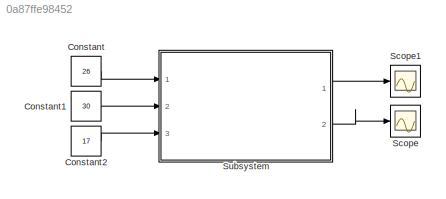
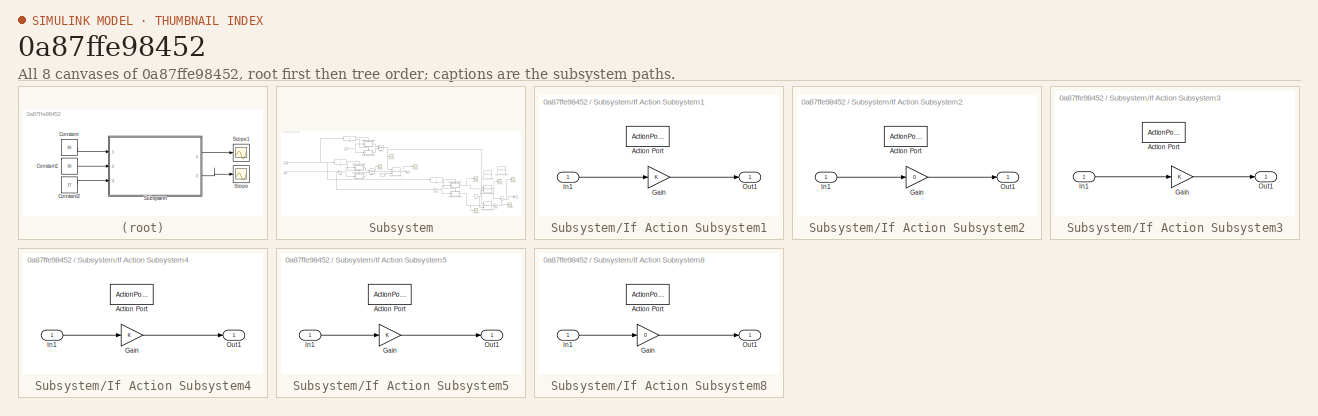
[diagram: thumbnail index - all 8 canvases of the model, root first then tree order]
MODEL slx_0a87ffe98452
KIND model
CONFIG AbsTol = auto
CONFIG EnableMultiTasking = off
CONFIG FixedStep = auto
CONFIG MaxStep = auto
CONFIG MinStep = auto
CONFIG RelTol = 1e-3
CONFIG SampleTimeConstraint = Unconstrained
CONFIG Solver = VariableStepAuto
CONFIG SolverName = VariableStepAuto
CONFIG StartTime = 0.0
CONFIG StopTime = 10.0
BLOCK [Constant] Constant
  Value = 26
BLOCK [Constant] Constant1
  Value = 30
BLOCK [Constant] Constant2
  Value = 17
BLOCK [Scope] Scope
  Floating = off
  NumInputPorts = 1
  Ports = [1]
  ScopeSpecificationString = Simulink.scopes.TimeScopeBlockCfg('CurrentConfiguration', extmgr.ConfigurationSet(extmgr.Configuration('Core','General UI',true),extmgr.Configuration('Core','Source UI',true),extmgr.Configuration('Sources','WiredSimulink',true,'DataLoggingVariableName','ScopeData1'),extmgr.Configuration('Visuals','Time Domain',true,'SerializedDisplays',{struct('MinYLimReal','7.00000','MaxYLimReal','27.00000','YLab...<+1372ch>
BLOCK [Scope] Scope1
  Floating = off
  NumInputPorts = 1
  Ports = [1]
  ScopeSpecificationString = Simulink.scopes.TimeScopeBlockCfg('CurrentConfiguration', extmgr.ConfigurationSet(extmgr.Configuration('Core','General UI',true),extmgr.Configuration('Core','Source UI',true),extmgr.Configuration('Sources','WiredSimulink',true,'DataLoggingVariableName','ScopeData2'),extmgr.Configuration('Visuals','Time Domain',true,'SerializedDisplays',{struct('MinYLimReal','7.00000','MaxYLimReal','27.00000','YLab...<+1372ch>
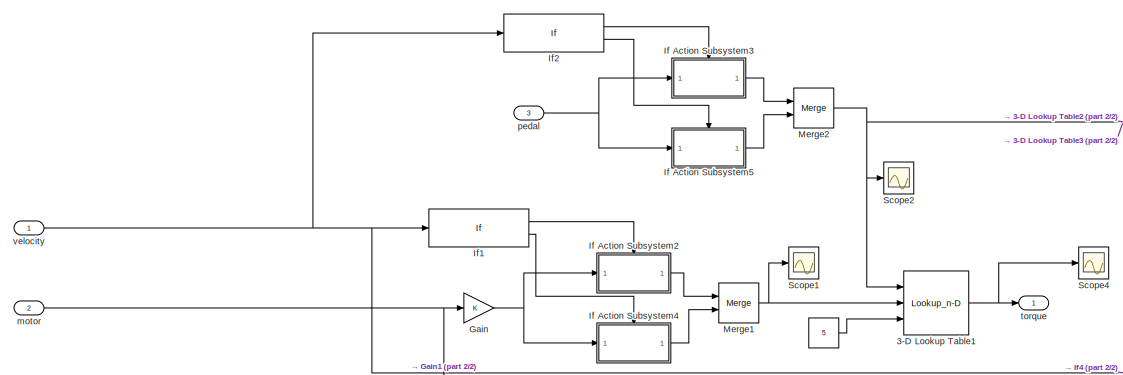
[diagram: Subsystem - part 1/2, top left region]
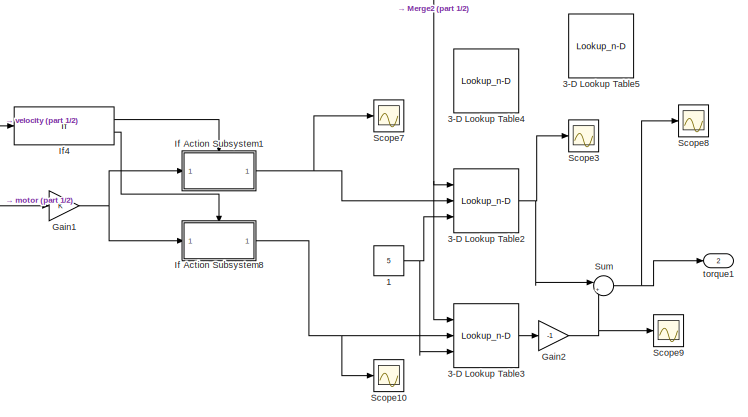
[diagram: Subsystem - part 2/2, bottom right region]
BLOCK [SubSystem] Subsystem
  Ports = [3, 2]
  RequestExecContextInheritance = off
BLOCK [Constant] Subsystem/ 
  Value = 5
BLOCK [Constant] Subsystem/ 1
  Value = 5
BLOCK [Lookup_n-D] Subsystem/3-D Lookup Table1
  BreakpointsForDimension1 = [0,5,10,15,20]
  BreakpointsForDimension2 = [0,10,20,30,40]
  BreakpointsForDimension3 = [5, 7]
  InternalRulePriority = Speed
  NumberOfTableDimensions = 3
  Ports = [3, 1]
  RndMeth = Simplest
  Table = reshape([0,5,10,15,20,0,10,15,20,25,0,10,20,25,30,0,10,20,30,35,0,10,20,30,40,0,5,10,15,20,0,10,15,20,25,0,10,20,25,30,0,10,20,30,35,0,10,20,30,40],5,5,2)
BLOCK [Lookup_n-D] Subsystem/3-D Lookup Table2
  BreakpointsForDimension1 = [0,5,10,15,20]
  BreakpointsForDimension2 = [0,10,20,30,40]
  BreakpointsForDimension3 = [5, 7]
  InternalRulePriority = Speed
  NumberOfTableDimensions = 3
  Ports = [3, 1]
  RndMeth = Simplest
  Table = reshape([0,5,10,15,20,0,10,15,20,25,0,10,20,25,30,0,10,20,30,35,0,10,20,30,40,0,5,10,15,20,0,10,15,20,25,0,10,20,25,30,0,10,20,30,35,0,10,20,30,40],5,5,2)
BLOCK [Lookup_n-D] Subsystem/3-D Lookup Table3
  BreakpointsForDimension1 = [0,5,10,15,20]
  BreakpointsForDimension2 = [0,10,20,30,40]
  BreakpointsForDimension3 = [5, 7]
  InternalRulePriority = Speed
  NumberOfTableDimensions = 3
  Ports = [3, 1]
  RndMeth = Simplest
  Table = reshape([0,0,0,0,0,0,10,15,20,25,0,10,20,25,30,0,10,20,30,35,0,10,20,30,40,0,5,10,15,20,0,10,15,20,25,0,10,20,25,30,0,10,20,30,35,0,10,20,30,40],5,5,2)
BLOCK [Lookup_n-D] Subsystem/3-D Lookup Table4
  BreakpointsForDimension1 = [0,5,10,15,20]
  BreakpointsForDimension2 = [-40,-30,-20,-10,0,10,20,30,40]
  BreakpointsForDimension3 = [5, 7]
  InternalRulePriority = Speed
  NumberOfTableDimensions = 3
  Ports = [3, 1]
  RndMeth = Simplest
  Table = reshape([0,-10,-20,-30,-40,0,-10,-20,-30,-35,0,-10,-20,-25,-30,0,-10,-15,-20,-25,0,5,10,15,20,0,10,15,20,25,0,10,20,25,30,0,10,20,30,35,0,10,20,30,40,0,-10,-20,-30,-40,0,-10,-20,-30,-35,0,-10,-20,-25,-30,0,-10,-15,-20,-25,0,5,10,15,20,0,10,15,20,25,0,10,20,25,30,0,10,20,30,35,0,10,20,30,40],5,9,2)
BLOCK [Lookup_n-D] Subsystem/3-D Lookup Table5
  BreakpointsForDimension1 = [0,5,10,15,20]
  BreakpointsForDimension2 = [-40,-30,-20,-10,0]
  BreakpointsForDimension3 = [5, 7]
  InternalRulePriority = Speed
  NumberOfTableDimensions = 3
  Ports = [3, 1]
  RndMeth = Simplest
  Table = reshape([\n0,-10,-20,-30,-40,0,-10,-20,-30,-35,0,-10,-20,-25,-30,0,-10,-15,-20,-25,0,5,10,15,20,0,-10,-20,-30,-40,0,-10,-20,-30,-35,0,-10,-20,-25,-30,0,-10,-15,-20,-25,0,5,10,15,20],5,5,2)
BLOCK [Gain] Subsystem/Gain
  OutDataTypeStr = Inherit: Inherit via internal rule
  ParamDataTypeStr = Inherit: Inherit via internal rule
  SaturateOnIntegerOverflow = off
BLOCK [Gain] Subsystem/Gain1
  OutDataTypeStr = Inherit: Inherit via internal rule
  ParamDataTypeStr = Inherit: Inherit via internal rule
  SaturateOnIntegerOverflow = off
BLOCK [Gain] Subsystem/Gain2
  Gain = -1
  OutDataTypeStr = Inherit: Inherit via internal rule
  ParamDataTypeStr = Inherit: Inherit via internal rule
  SaturateOnIntegerOverflow = off
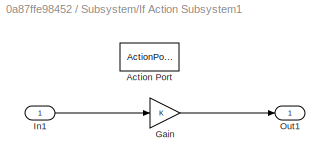
BLOCK [SubSystem] Subsystem/If Action Subsystem1
  Ports = [1, 1, 0, 0, 0, 0, 0, 1]
  RequestExecContextInheritance = off
  TreatAsAtomicUnit = on
BLOCK [ActionPort] Subsystem/If Action Subsystem1/Action Port
  ActionPortLabel = if(u1 < 25.25)
BLOCK [Gain] Subsystem/If Action Subsystem1/Gain
  OutDataTypeStr = Inherit: Inherit via internal rule
  ParamDataTypeStr = Inherit: Inherit via internal rule
  SaturateOnIntegerOverflow = off
BLOCK [Inport] Subsystem/If Action Subsystem1/In1
  IconDisplay = Port number
BLOCK [Outport] Subsystem/If Action Subsystem1/Out1
  IconDisplay = Port number
BLOCK [SubSystem] Subsystem/If Action Subsystem2
  Ports = [1, 1, 0, 0, 0, 0, 0, 1]
  RequestExecContextInheritance = off
  TreatAsAtomicUnit = on
BLOCK [ActionPort] Subsystem/If Action Subsystem2/Action Port
  ActionPortLabel = if(u1 > 25)
BLOCK [Gain] Subsystem/If Action Subsystem2/Gain
  Gain = 0
  OutDataTypeStr = Inherit: Inherit via internal rule
  ParamDataTypeStr = Inherit: Inherit via internal rule
  SaturateOnIntegerOverflow = off
BLOCK [Inport] Subsystem/If Action Subsystem2/In1
  IconDisplay = Port number
BLOCK [Outport] Subsystem/If Action Subsystem2/Out1
  IconDisplay = Port number
BLOCK [SubSystem] Subsystem/If Action Subsystem3
  Ports = [1, 1, 0, 0, 0, 0, 0, 1]
  RequestExecContextInheritance = off
  TreatAsAtomicUnit = on
BLOCK [ActionPort] Subsystem/If Action Subsystem3/Action Port
  ActionPortLabel = if(u1 < 25.5)
BLOCK [Gain] Subsystem/If Action Subsystem3/Gain
  OutDataTypeStr = Inherit: Inherit via internal rule
  ParamDataTypeStr = Inherit: Inherit via internal rule
  SaturateOnIntegerOverflow = off
BLOCK [Inport] Subsystem/If Action Subsystem3/In1
  IconDisplay = Port number
BLOCK [Outport] Subsystem/If Action Subsystem3/Out1
  IconDisplay = Port number
BLOCK [SubSystem] Subsystem/If Action Subsystem4
  Ports = [1, 1, 0, 0, 0, 0, 0, 1]
  RequestExecContextInheritance = off
  TreatAsAtomicUnit = on
BLOCK [ActionPort] Subsystem/If Action Subsystem4/Action Port
  ActionPortLabel = else
BLOCK [Gain] Subsystem/If Action Subsystem4/Gain
  OutDataTypeStr = Inherit: Inherit via internal rule
  ParamDataTypeStr = Inherit: Inherit via internal rule
  SaturateOnIntegerOverflow = off
BLOCK [Inport] Subsystem/If Action Subsystem4/In1
  IconDisplay = Port number
BLOCK [Outport] Subsystem/If Action Subsystem4/Out1
  IconDisplay = Port number
BLOCK [SubSystem] Subsystem/If Action Subsystem5
  Ports = [1, 1, 0, 0, 0, 0, 0, 1]
  RequestExecContextInheritance = off
  TreatAsAtomicUnit = on
BLOCK [ActionPort] Subsystem/If Action Subsystem5/Action Port
  ActionPortLabel = else
BLOCK [Gain] Subsystem/If Action Subsystem5/Gain
  OutDataTypeStr = Inherit: Inherit via internal rule
  ParamDataTypeStr = Inherit: Inherit via internal rule
  SaturateOnIntegerOverflow = off
BLOCK [Inport] Subsystem/If Action Subsystem5/In1
  IconDisplay = Port number
BLOCK [Outport] Subsystem/If Action Subsystem5/Out1
  IconDisplay = Port number
BLOCK [SubSystem] Subsystem/If Action Subsystem8
  Ports = [1, 1, 0, 0, 0, 0, 0, 1]
  RequestExecContextInheritance = off
  TreatAsAtomicUnit = on
BLOCK [ActionPort] Subsystem/If Action Subsystem8/Action Port
  ActionPortLabel = else
BLOCK [Gain] Subsystem/If Action Subsystem8/Gain
  Gain = 0
  OutDataTypeStr = Inherit: Inherit via internal rule
  ParamDataTypeStr = Inherit: Inherit via internal rule
  SaturateOnIntegerOverflow = off
BLOCK [Inport] Subsystem/If Action Subsystem8/In1
  IconDisplay = Port number
BLOCK [Outport] Subsystem/If Action Subsystem8/Out1
  IconDisplay = Port number
BLOCK [If] Subsystem/If1
  IfExpression = u1 > 25
  Ports = [1, 2]
BLOCK [If] Subsystem/If2
  IfExpression = u1 < 25.5
  Ports = [1, 2]
BLOCK [If] Subsystem/If4
  IfExpression = u1 < 25.25
  Ports = [1, 2]
BLOCK [Merge] Subsystem/Merge1
  Ports = [2, 1]
BLOCK [Merge] Subsystem/Merge2
  Ports = [2, 1]
BLOCK [Scope] Subsystem/Scope1
  Floating = off
  NumInputPorts = 1
  Ports = [1]
  ScopeSpecificationString = Simulink.scopes.TimeScopeBlockCfg('CurrentConfiguration', extmgr.ConfigurationSet(extmgr.Configuration('Core','General UI',true),extmgr.Configuration('Core','Source UI',true),extmgr.Configuration('Sources','WiredSimulink',true,'DataLoggingVariableName','ScopeData1'),extmgr.Configuration('Visuals','Time Domain',true,'SerializedDisplays',{struct('MinYLimReal','-3.62164','MaxYLimReal','32.56818','YLa...<+1421ch>
BLOCK [Scope] Subsystem/Scope10
  Floating = off
  NumInputPorts = 1
  Ports = [1]
  ScopeSpecificationString = Simulink.scopes.TimeScopeBlockCfg('CurrentConfiguration', extmgr.ConfigurationSet(extmgr.Configuration('Core','General UI',true),extmgr.Configuration('Core','Source UI',true),extmgr.Configuration('Sources','WiredSimulink',true,'DataLoggingVariableName','ScopeData5'),extmgr.Configuration('Visuals','Time Domain',true,'SerializedDisplays',{struct('MinYLimReal','-3.622','MaxYLimReal','32.54344','YLabe...<+1452ch>
BLOCK [Scope] Subsystem/Scope2
  Floating = off
  NumInputPorts = 1
  Ports = [1]
  ScopeSpecificationString = Simulink.scopes.TimeScopeBlockCfg('CurrentConfiguration', extmgr.ConfigurationSet(extmgr.Configuration('Core','General UI',true),extmgr.Configuration('Core','Source UI',true),extmgr.Configuration('Sources','WiredSimulink',true),extmgr.Configuration('Visuals','Time Domain',true,'SerializedDisplays',{struct('MinYLimReal','-1.8742','MaxYLimReal','16.87491','YLabelReal','','MinYLimMag','0.00000','MaxY...<+1399ch>
BLOCK [Scope] Subsystem/Scope3
  Floating = off
  NumInputPorts = 1
  Ports = [1]
  ScopeSpecificationString = Simulink.scopes.TimeScopeBlockCfg('CurrentConfiguration', extmgr.ConfigurationSet(extmgr.Configuration('Core','General UI',true),extmgr.Configuration('Core','Source UI',true),extmgr.Configuration('Sources','WiredSimulink',true,'DataLoggingVariableName','ScopeData1'),extmgr.Configuration('Visuals','Time Domain',true,'SerializedDisplays',{struct('MinYLimReal','-31.52959','MaxYLimReal','39.5858','YLa...<+1454ch>
BLOCK [Scope] Subsystem/Scope4
  Floating = off
  NumInputPorts = 1
  Ports = [1]
  ScopeSpecificationString = Simulink.scopes.TimeScopeBlockCfg('CurrentConfiguration', extmgr.ConfigurationSet(extmgr.Configuration('Core','General UI',true),extmgr.Configuration('Core','Source UI',true),extmgr.Configuration('Sources','WiredSimulink',true,'DataLoggingVariableName','ScopeData4'),extmgr.Configuration('Visuals','Time Domain',true,'SerializedDisplays',{struct('MinYLimReal','-5.48967','MaxYLimReal','49.40704','YLa...<+1458ch>
BLOCK [Scope] Subsystem/Scope7
  Floating = off
  NumInputPorts = 1
  Ports = [1]
  ScopeSpecificationString = Simulink.scopes.TimeScopeBlockCfg('CurrentConfiguration', extmgr.ConfigurationSet(extmgr.Configuration('Core','General UI',true),extmgr.Configuration('Core','Source UI',true),extmgr.Configuration('Sources','WiredSimulink',true,'DataLoggingVariableName','ScopeData2'),extmgr.Configuration('Visuals','Time Domain',true,'SerializedDisplays',{struct('MinYLimReal','-3.62164','MaxYLimReal','32.56818','YLa...<+1491ch>
BLOCK [Scope] Subsystem/Scope8
  Floating = off
  NumInputPorts = 1
  Ports = [1]
  ScopeSpecificationString = Simulink.scopes.TimeScopeBlockCfg('CurrentConfiguration', extmgr.ConfigurationSet(extmgr.Configuration('Core','General UI',true),extmgr.Configuration('Core','Source UI',true),extmgr.Configuration('Sources','WiredSimulink',true,'DataLoggingVariableName','ScopeData3'),extmgr.Configuration('Visuals','Time Domain',true,'SerializedDisplays',{struct('MinYLimReal','-4.05928','MaxYLimReal','36.53354','YLa...<+1456ch>
BLOCK [Scope] Subsystem/Scope9
  Floating = off
  NumInputPorts = 1
  Ports = [1]
  ScopeSpecificationString = Simulink.scopes.TimeScopeBlockCfg('CurrentConfiguration', extmgr.ConfigurationSet(extmgr.Configuration('Core','General UI',true),extmgr.Configuration('Core','Source UI',true),extmgr.Configuration('Sources','WiredSimulink',true,'DataLoggingVariableName','ScopeData4'),extmgr.Configuration('Visuals','Time Domain',true,'SerializedDisplays',{struct('MinYLimReal','-1.00000','MaxYLimReal','1.00000','YLab...<+1452ch>
BLOCK [Sum] Subsystem/Sum
  IconShape = round
  InputSameDT = off
  Inputs = |++
  OutDataTypeStr = Inherit: Inherit via internal rule
  Ports = [2, 1]
  SaturateOnIntegerOverflow = off
BLOCK [Inport] Subsystem/motor
  IconDisplay = Port number
  Port = 2
BLOCK [Inport] Subsystem/pedal
  IconDisplay = Port number
  Port = 3
BLOCK [Outport] Subsystem/torque
  IconDisplay = Port number
BLOCK [Outport] Subsystem/torque1
  IconDisplay = Port number
  Port = 2
BLOCK [Inport] Subsystem/velocity
  IconDisplay = Port number
LINE Constant1:1 -> Subsystem:2
LINE Constant2:1 -> Subsystem:3
LINE Constant:1 -> Subsystem:1
NET Subsystem/ 1:1 -> Subsystem/3-D Lookup Table2:3, Subsystem/3-D Lookup Table3:3
LINE Subsystem/ :1 -> Subsystem/3-D Lookup Table1:3
NET Subsystem/3-D Lookup Table1:1 -> Subsystem/Scope4:1, Subsystem/torque:1
NET Subsystem/3-D Lookup Table2:1 -> Subsystem/Scope3:1, Subsystem/Sum:1
LINE Subsystem/3-D Lookup Table3:1 -> Subsystem/Gain2:1
NET Subsystem/Gain1:1 -> Subsystem/If Action Subsystem1:1, Subsystem/If Action Subsystem8:1
NET Subsystem/Gain2:1 -> Subsystem/Scope9:1, Subsystem/Sum:2
NET Subsystem/Gain:1 -> Subsystem/If Action Subsystem2:1, Subsystem/If Action Subsystem4:1
LINE Subsystem/If Action Subsystem1/Gain:1 -> Subsystem/If Action Subsystem1/Out1:1
LINE Subsystem/If Action Subsystem1/In1:1 -> Subsystem/If Action Subsystem1/Gain:1
NET Subsystem/If Action Subsystem1:1 -> Subsystem/3-D Lookup Table2:2, Subsystem/Scope7:1
LINE Subsystem/If Action Subsystem2/Gain:1 -> Subsystem/If Action Subsystem2/Out1:1
LINE Subsystem/If Action Subsystem2/In1:1 -> Subsystem/If Action Subsystem2/Gain:1
LINE Subsystem/If Action Subsystem2:1 -> Subsystem/Merge1:1
LINE Subsystem/If Action Subsystem3/Gain:1 -> Subsystem/If Action Subsystem3/Out1:1
LINE Subsystem/If Action Subsystem3/In1:1 -> Subsystem/If Action Subsystem3/Gain:1
LINE Subsystem/If Action Subsystem3:1 -> Subsystem/Merge2:1
LINE Subsystem/If Action Subsystem4/Gain:1 -> Subsystem/If Action Subsystem4/Out1:1
LINE Subsystem/If Action Subsystem4/In1:1 -> Subsystem/If Action Subsystem4/Gain:1
LINE Subsystem/If Action Subsystem4:1 -> Subsystem/Merge1:2
LINE Subsystem/If Action Subsystem5/Gain:1 -> Subsystem/If Action Subsystem5/Out1:1
LINE Subsystem/If Action Subsystem5/In1:1 -> Subsystem/If Action Subsystem5/Gain:1
LINE Subsystem/If Action Subsystem5:1 -> Subsystem/Merge2:2
LINE Subsystem/If Action Subsystem8/Gain:1 -> Subsystem/If Action Subsystem8/Out1:1
LINE Subsystem/If Action Subsystem8/In1:1 -> Subsystem/If Action Subsystem8/Gain:1
NET Subsystem/If Action Subsystem8:1 -> Subsystem/3-D Lookup Table3:2, Subsystem/Scope10:1
LINE Subsystem/If1:1 -> Subsystem/If Action Subsystem2:ifaction
LINE Subsystem/If1:2 -> Subsystem/If Action Subsystem4:ifaction
LINE Subsystem/If2:1 -> Subsystem/If Action Subsystem3:ifaction
LINE Subsystem/If2:2 -> Subsystem/If Action Subsystem5:ifaction
LINE Subsystem/If4:1 -> Subsystem/If Action Subsystem1:ifaction
LINE Subsystem/If4:2 -> Subsystem/If Action Subsystem8:ifaction
NET Subsystem/Merge1:1 -> Subsystem/3-D Lookup Table1:2, Subsystem/Scope1:1
NET Subsystem/Merge2:1 -> Subsystem/3-D Lookup Table1:1, Subsystem/3-D Lookup Table2:1, Subsystem/3-D Lookup Table3:1, Subsystem/Scope2:1
NET Subsystem/Sum:1 -> Subsystem/Scope8:1, Subsystem/torque1:1
NET Subsystem/motor:1 -> Subsystem/Gain1:1, Subsystem/Gain:1
NET Subsystem/pedal:1 -> Subsystem/If Action Subsystem3:1, Subsystem/If Action Subsystem5:1
NET Subsystem/velocity:1 -> Subsystem/If1:1, Subsystem/If2:1, Subsystem/If4:1
LINE Subsystem:1 -> Scope1:1
LINE Subsystem:2 -> Scope:1
note: NET lines group one-source signal fan-out (src -> all destinations, sorted); 1:1 wires keep LINE
